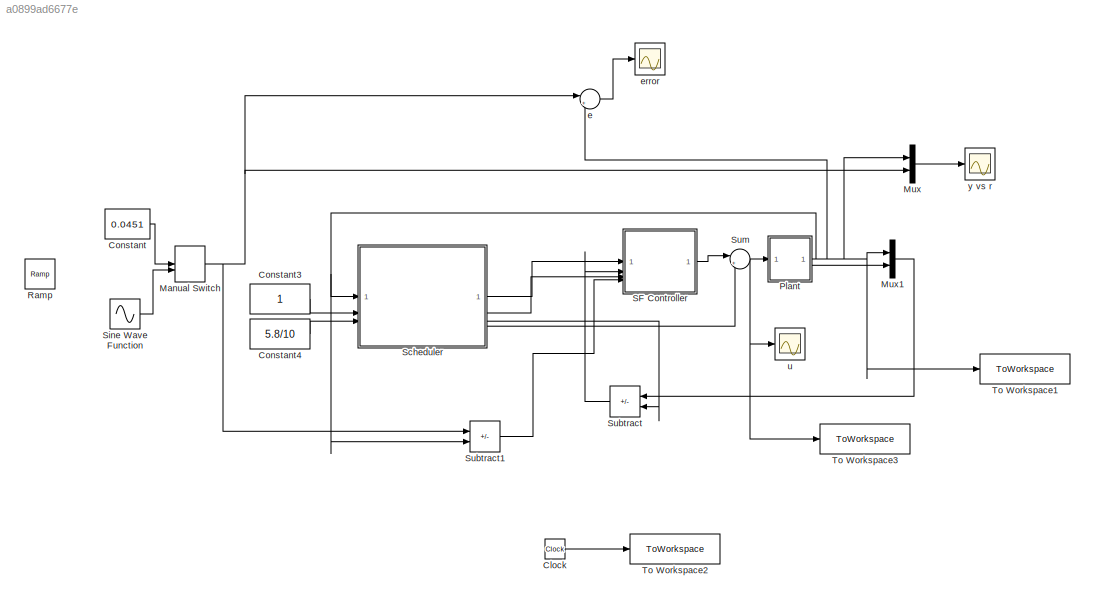
MODEL slx_a0899ad6677e
KIND model
CONFIG AbsTol = auto
CONFIG EnableMultiTasking = off
CONFIG FixedStep = auto
CONFIG MaxStep = auto
CONFIG MinStep = auto
CONFIG RelTol = 1e-3
CONFIG SampleTimeConstraint = Unconstrained
CONFIG SolverName = VariableStepAuto
CONFIG StartTime = 0.0
CONFIG StopTime = 100
BLOCK [Clock] Clock
BLOCK [Constant] Constant
  Value = 0.0451
BLOCK [Constant] Constant3
BLOCK [Constant] Constant4
  Value = 5.8/10
BLOCK [ManualSwitch] Manual Switch
BLOCK [Mux] Mux
  DisplayOption = bar
  Inputs = 2
BLOCK [Mux] Mux1
  DisplayOption = bar
  Inputs = 2
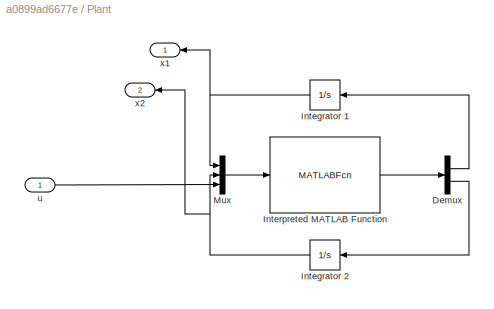
BLOCK [SubSystem] Plant
BLOCK [Demux] Plant/Demux
  Outputs = 2
BLOCK [Integrator] Plant/Integrator 1
  InitialCondition = x1_0
  NameLocation = top
BLOCK [Integrator] Plant/Integrator 2
  InitialCondition = x2_0
  NameLocation = top
BLOCK [MATLABFcn] Plant/Interpreted MATLAB Function
  MATLABFcn = SYS
  OutputDimensions = 2
BLOCK [Mux] Plant/Mux
  DisplayOption = bar
  Inputs = 3
BLOCK [Inport] Plant/u
BLOCK [Outport] Plant/x1
BLOCK [Outport] Plant/x2
  Port = 2
BLOCK [Reference] Ramp  REF=simulink/Sources/Ramp
  SourceBlock = simulink/Sources/Ramp
  SourceType = Ramp
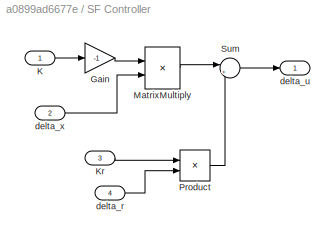
BLOCK [SubSystem] SF Controller
BLOCK [Gain] SF Controller/Gain
  Gain = -1
BLOCK [Inport] SF Controller/K
BLOCK [Inport] SF Controller/Kr
  Port = 3
BLOCK [Product] SF Controller/MatrixMultiply
  Multiplication = Matrix(*)
BLOCK [Product] SF Controller/Product
BLOCK [Sum] SF Controller/Sum
  Inputs = |++
BLOCK [Inport] SF Controller/delta_r
  Port = 4
BLOCK [Outport] SF Controller/delta_u
BLOCK [Inport] SF Controller/delta_x
  Port = 2
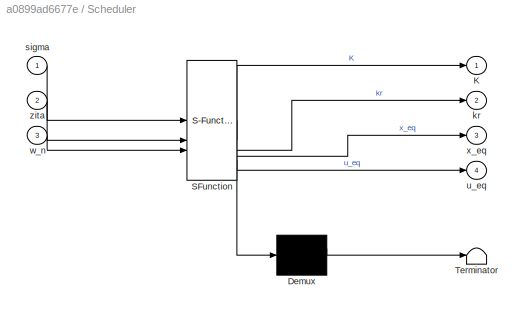
BLOCK [SubSystem] Scheduler
  ErrorFcn = Stateflow.Translate.translate
  PermitHierarchicalResolution = ExplicitOnly
  SFBlockType = MATLAB Function
  TreatAsAtomicUnit = on
BLOCK [Demux] Scheduler/ Demux 
  Outputs = 1
BLOCK [S-Function] Scheduler/ SFunction 
  EnableBusSupport = on
  FunctionName = sf_sfun
  PortCounts = [3 5]
  SFcnIsStateOwnerBlock = off
  SFunctionDeploymentMode = off
  Tag = Stateflow S-Function 2
BLOCK [Terminator] Scheduler/ Terminator 
BLOCK [Outport] Scheduler/K
BLOCK [Outport] Scheduler/kr
  Port = 2
BLOCK [Inport] Scheduler/sigma
BLOCK [Outport] Scheduler/u_eq
  Port = 4
BLOCK [Inport] Scheduler/w_n
  Port = 3
BLOCK [Outport] Scheduler/x_eq
  Port = 3
BLOCK [Inport] Scheduler/zita
  Port = 2
BLOCK [Sin] Sine Wave Function
  Amplitude = 0.01
  Bias = 0.0451
  Frequency = 0.05
  SampleTime = 0
BLOCK [Sum] Subtract
  IconShape = rectangular
  Inputs = +-
  NameLocation = top
BLOCK [Sum] Subtract1
  IconShape = rectangular
  Inputs = +-
BLOCK [Sum] Sum
  Inputs = |++
BLOCK [ToWorkspace] To Workspace1
  FixptAsFi = on
  MaxDataPoints = inf
  SampleTime = -1
  VariableName = y
BLOCK [ToWorkspace] To Workspace2
  FixptAsFi = on
  MaxDataPoints = inf
  SampleTime = -1
  VariableName = t
BLOCK [ToWorkspace] To Workspace3
  FixptAsFi = on
  MaxDataPoints = inf
  SampleTime = -1
  VariableName = u
BLOCK [Sum] e
  Inputs = |+-
  NameLocation = top
BLOCK [Scope] error
  Floating = off
  NumInputPorts = 1
  ScopeSpecificationString = Simulink.scopes.TimeScopeBlockCfg('CurrentConfiguration', extmgr.ConfigurationSet(extmgr.Configuration('Core','General UI',true),extmgr.Configuration('Core','Source UI',true),extmgr.Configuration('Sources','WiredSimulink',true,'DataLoggingVariableName','ScopeData2'),extmgr.Configuration('Visuals','Time Domain',true,'SerializedDisplays',{struct('MinYLimReal','-0.04629','MaxYLimReal','0.04414','YLab...<+1652ch>
BLOCK [Scope] u
  Floating = off
  NumInputPorts = 1
  ScopeSpecificationString = Simulink.scopes.TimeScopeBlockCfg('CurrentConfiguration', extmgr.ConfigurationSet(extmgr.Configuration('Core','General UI',true),extmgr.Configuration('Core','Source UI',true),extmgr.Configuration('Sources','WiredSimulink',true,'DataLoggingVariableName','ScopeData1'),extmgr.Configuration('Visuals','Time Domain',true,'SerializedDisplays',{struct('MinYLimReal','-501.34596','MaxYLimReal','151.10058','...<+1668ch>
BLOCK [Scope] y vs r
  Floating = off
  NumInputPorts = 1
  ScopeSpecificationString = Simulink.scopes.TimeScopeBlockCfg('CurrentConfiguration', extmgr.ConfigurationSet(extmgr.Configuration('Core','General UI',true),extmgr.Configuration('Core','Source UI',true),extmgr.Configuration('Sources','WiredSimulink',true),extmgr.Configuration('Visuals','Time Domain',true,'SerializedDisplays',{struct('MinYLimReal','0.00096','MaxYLimReal','0.09139','YLabelReal','','MinYLimMag','0.00096','MaxYL...<+1952ch>
LINE Clock:1 -> To Workspace2:1
LINE Constant3:1 -> Scheduler:2
LINE Constant4:1 -> Scheduler:3
LINE Constant:1 -> Manual Switch:1
NET Manual Switch:1 -> Mux:2, Subtract1:1, e:1
LINE Mux1:1 -> Subtract:1
LINE Mux:1 -> y vs r:1
LINE Plant/Demux:1 -> Plant/Integrator 1:1
LINE Plant/Demux:2 -> Plant/Integrator 2:1
NET Plant/Integrator 1:1 -> Plant/Mux:1, Plant/x1:1
NET Plant/Integrator 2:1 -> Plant/Mux:2, Plant/x2:1
LINE Plant/Interpreted MATLAB Function:1 -> Plant/Demux:1
LINE Plant/Mux:1 -> Plant/Interpreted MATLAB Function:1
LINE Plant/u:1 -> Plant/Mux:3
NET Plant:1 -> Mux1:1, Mux:1, Scheduler:1, Subtract1:2, To Workspace1:1, e:2
LINE Plant:2 -> Mux1:2
LINE SF Controller/Gain:1 -> SF Controller/MatrixMultiply:1
LINE SF Controller/K:1 -> SF Controller/Gain:1
LINE SF Controller/Kr:1 -> SF Controller/Product:1
LINE SF Controller/MatrixMultiply:1 -> SF Controller/Sum:1
LINE SF Controller/Product:1 -> SF Controller/Sum:2
LINE SF Controller/Sum:1 -> SF Controller/delta_u:1
LINE SF Controller/delta_r:1 -> SF Controller/Product:2
LINE SF Controller/delta_x:1 -> SF Controller/MatrixMultiply:2
LINE SF Controller:1 -> Sum:1
LINE Scheduler:1 -> SF Controller:1
LINE Scheduler:2 -> SF Controller:3
LINE Scheduler:3 -> Subtract:2
LINE Scheduler:4 -> Sum:2
LINE Sine Wave Function:1 -> Manual Switch:2
LINE Subtract1:1 -> SF Controller:4
LINE Subtract:1 -> SF Controller:2
NET Sum:1 -> Plant:1, To Workspace3:1, u:1
LINE e:1 -> error:1
note: NET lines group one-source signal fan-out (src -> all destinations, sorted); 1:1 wires keep LINE
CHART Scheduler states=1 transitions=1
  STATE_LABEL 'eML_blk_kernel()'
  STATE_LABEL 'SCRIPT:\nfunction [K,kr,x_eq,u_eq] = compute_gains(sigma, zita, w_n)\n    k1 = -(625*(20769187434139310514121985316880384*sigma^2*w_n^2 - 608412576695676974541561223184384*zita*sigma*w_n + 4455709505430790413433498137721))/(125913198819469569991864535983587328*sigma^3);\n    k2 = -(2819253366733930496*sigma - 180143985094819840000*sigma*w_n*zita + 1319284474841913125)/(873698327709876224*sigma);\n    ...<+405ch>'
CHART  states=0 transitions=0
